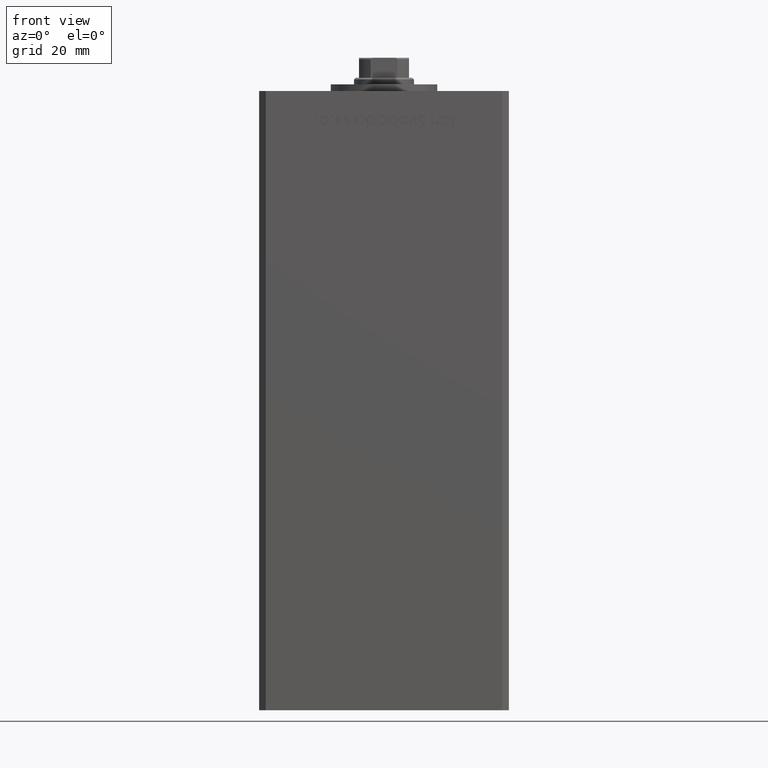
[diagram: clean part render]
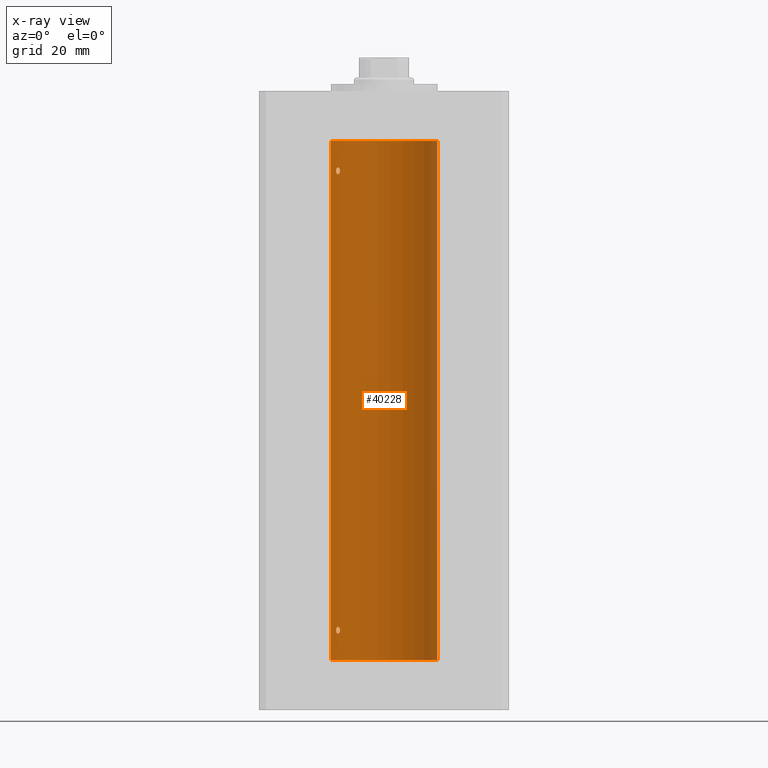
[diagram: x-ray — body ghosted, one internal face saturated and labeled with its STEP entity id]
A machine part, front view, then the same camera in x-ray: the body is ghosted and one INTERNAL B-rep face — a face not visible from any outside direction — is saturated and labeled: STEP entity #40228.
In plain terms, the highlighted cylindrical surface (partial cylindrical patch) has radius 16 mm, axis along (-0, -0, -1).
Its self-contained STEP definition (entity closure, byte-faithful):
#206 = EDGE_CURVE ( 'NONE', #8723, #643, #15499, .T. ) ;
#643 = VERTEX_POINT ( 'NONE', #1716 ) ;
#1091 = CARTESIAN_POINT ( 'NONE',  ( -13.37741691572085934, 8.778212469423014142, 9.640882860227099727 ) ) ;
#1347 = CARTESIAN_POINT ( 'NONE',  ( -14.11618354197461400, 7.533333301880478672, 9.893207651933416003 ) ) ;
#1570 = CARTESIAN_POINT ( 'NONE',  ( -13.22875655532296157, 8.999999999999994671, 147.1406447609177803 ) ) ;
#1630 = CARTESIAN_POINT ( 'NONE',  ( -14.31660136508399184, 7.144151923086058176, 8.464621795444474017 ) ) ;
#1647 = DIRECTION ( 'NONE',  ( -0.000000000000000000, -0.000000000000000000, -1.000000000000000000 ) ) ;
#1716 = CARTESIAN_POINT ( 'NONE',  ( -14.38749456993815912, 6.999999999999998224, 147.0000000000000284 ) ) ;
#2395 = LINE ( 'NONE', #48781, #31806 ) ;
#2407 = CARTESIAN_POINT ( 'NONE',  ( -13.22875655532295447, 8.999999999999996447, 9.000000000000000000 ) ) ;
#2588 = VECTOR ( 'NONE', #39726, 1000.000000000000000 ) ;
#2666 = CARTESIAN_POINT ( 'NONE',  ( -14.37250282441143767, 7.031013007322936659, 8.716856996037261496 ) ) ;
#2683 = CARTESIAN_POINT ( 'NONE',  ( -13.22875655532295625, 8.999999999999994671, 146.9295656223616504 ) ) ;
#3117 = CARTESIAN_POINT ( 'NONE',  ( -14.17576283486774891, 7.420212263225987925, 147.8252530343044100 ) ) ;
#3191 = CARTESIAN_POINT ( 'NONE',  ( -14.11621438951177687, 7.533308783217008475, 146.1065710718395110 ) ) ;
#3635 = EDGE_LOOP ( 'NONE', ( #18388, #15991, #28966, #8865 ) ) ;
#5037 = CARTESIAN_POINT ( 'NONE',  ( -13.22875655532295447, 8.999999999999996447, 9.000000000000000000 ) ) ;
#5152 = CARTESIAN_POINT ( 'NONE',  ( 0.000000000000000000, 0.000000000000000000, 156.0000000000000000 ) ) ;
#5726 = CIRCLE ( 'NONE', #47016, 16.00000000000000000 ) ;
#5774 = CARTESIAN_POINT ( 'NONE',  ( -13.70792461986390798, 8.256614593260307444, 147.9966215356423334 ) ) ;
#5933 = DIRECTION ( 'NONE',  ( 1.000000000000000000, 0.000000000000000000, 0.000000000000000000 ) ) ;
#6554 = CARTESIAN_POINT ( 'NONE',  ( -14.38749456993815912, 6.999999999999998224, 147.0000000000000284 ) ) ;
#6991 = ORIENTED_EDGE ( 'NONE', *, *, #16345, .F. ) ;
#7407 = CARTESIAN_POINT ( 'NONE',  ( -13.56386909142669772, 8.487613976483636691, 146.1182242979961359 ) ) ;
#7669 = CARTESIAN_POINT ( 'NONE',  ( -13.49759407097375075, 8.592283911330223845, 146.1840991521277147 ) ) ;
#7821 = EDGE_CURVE ( 'NONE', #17960, #50544, #2395, .T. ) ;
#8235 = CARTESIAN_POINT ( 'NONE',  ( 0.000000000000000000, 0.000000000000000000, 156.0000000000000000 ) ) ;
#8723 = VERTEX_POINT ( 'NONE', #43018 ) ;
#8865 = ORIENTED_EDGE ( 'NONE', *, *, #46086, .F. ) ;
#9524 = CARTESIAN_POINT ( 'NONE',  ( -13.32426099938365027, 8.858246960865852060, 8.468874877532968526 ) ) ;
#9533 = VERTEX_POINT ( 'NONE', #10859 ) ;
#9728 = CARTESIAN_POINT ( 'NONE',  ( -13.32457971225032622, 8.857769707964648020, 147.5319996627465855 ) ) ;
#9783 = CARTESIAN_POINT ( 'NONE',  ( -13.77582987033441064, 8.139210687602712824, 8.002110545841816247 ) ) ;
#9891 = ORIENTED_EDGE ( 'NONE', *, *, #38820, .F. ) ;
#10839 = CARTESIAN_POINT ( 'NONE',  ( -13.23400746336172240, 8.992294519018086518, 146.8578145590230406 ) ) ;
#10859 = CARTESIAN_POINT ( 'NONE',  ( -14.38749456993815912, 6.999999999999997335, 9.000000000000000000 ) ) ;
#11104 = CARTESIAN_POINT ( 'NONE',  ( -14.31660136508398828, 7.144151923086063505, 146.4646217954444865 ) ) ;
#11888 = CARTESIAN_POINT ( 'NONE',  ( -14.17528142432533755, 7.421143801852455368, 146.1739430735387089 ) ) ;
#12454 = FACE_BOUND ( 'NONE', #32898, .T. ) ;
#13172 = B_SPLINE_CURVE_WITH_KNOTS ( 'NONE', 3,
 ( #34840, #46724, #2666, #1630, #29585, #22420, #13494, #18476, #21910, #9783, #34587, #30625, #38034, #49897, #9524, #26137, #22165, #14270, #18735, #2407 ),
 .UNSPECIFIED., .F., .F.,
 ( 4, 2, 2, 2, 2, 2, 2, 2, 2, 4 ),
 ( 0.000000000000000000, 0.0004222090241339719976, 0.0008444180482679439952, 0.001266627072401915830, 0.001688836096535887990, 0.002111045120669860151, 0.002533254144803831660, 0.002955463168937803604, 0.003166567681004790660, 0.003377672193071777282 ),
 .UNSPECIFIED. ) ;
#13477 = CARTESIAN_POINT ( 'NONE',  ( -14.27521483392929014, 7.227035590538633869, 9.647859870688195727 ) ) ;
#13494 = CARTESIAN_POINT ( 'NONE',  ( -14.11621438951177332, 7.533308783217010252, 8.106571071839512754 ) ) ;
#14270 = CARTESIAN_POINT ( 'NONE',  ( -13.23400746336172951, 8.992294519018086518, 8.857814559023015732 ) ) ;
#14797 = CARTESIAN_POINT ( 'NONE',  ( -13.70481462797717676, 8.258098555717509726, 146.0259974772911562 ) ) ;
#15499 = B_SPLINE_CURVE_WITH_KNOTS ( 'NONE', 3,
 ( #37710, #1570, #17646, #9728, #25810, #41916, #5774, #37975, #47702, #30567, #3117, #43740, #39273, #35305, #46666, #6554 ),
 .UNSPECIFIED., .F., .F.,
 ( 4, 2, 2, 2, 2, 2, 2, 4 ),
 ( 0.003377672193071779884, 0.003799209865779855366, 0.004220747538487930849, 0.005063822883904134722, 0.005485360556612237093, 0.005906898229320339463, 0.006328435902028442701, 0.006749973574736545072 ),
 .UNSPECIFIED. ) ;
#15991 = ORIENTED_EDGE ( 'NONE', *, *, #26291, .T. ) ;
#16175 = CARTESIAN_POINT ( 'NONE',  ( 16.00000000000000000, 1.959434878635765131E-15, 0.000000000000000000 ) ) ;
#16345 = EDGE_CURVE ( 'NONE', #9533, #29178, #13172, .T. ) ;
#16412 = CYLINDRICAL_SURFACE ( 'NONE', #36692, 16.00000000000000000 ) ;
#16662 = EDGE_LOOP ( 'NONE', ( #41963, #48158 ) ) ;
#17159 = CARTESIAN_POINT ( 'NONE',  ( -13.55800260393082546, 8.498809056167521803, 9.903643446210175227 ) ) ;
#17646 = CARTESIAN_POINT ( 'NONE',  ( -13.24976519864029179, 8.969293778684573226, 147.2815352263351940 ) ) ;
#17811 = CARTESIAN_POINT ( 'NONE',  ( -13.22875655532295447, 8.999999999999996447, 9.000000000000000000 ) ) ;
#17960 = VERTEX_POINT ( 'NONE', #31362 ) ;
#18388 = ORIENTED_EDGE ( 'NONE', *, *, #7821, .F. ) ;
#18476 = CARTESIAN_POINT ( 'NONE',  ( -13.98699950016872151, 7.770591669637119558, 8.018476816648481886 ) ) ;
#18718 = CIRCLE ( 'NONE', #22096, 16.00000000000000000 ) ;
#18735 = CARTESIAN_POINT ( 'NONE',  ( -13.22875655532295092, 8.999999999999994671, 8.929565622361636201 ) ) ;
#18750 = CARTESIAN_POINT ( 'NONE',  ( -13.26838749541400908, 8.941532915076043864, 146.6562177939213711 ) ) ;
#19268 = CARTESIAN_POINT ( 'NONE',  ( -13.32426099938365383, 8.858246960865844954, 146.4688748775330112 ) ) ;
#20532 = DIRECTION ( 'NONE',  ( 1.000000000000000000, 0.000000000000000000, 0.000000000000000000 ) ) ;
#20937 = EDGE_CURVE ( 'NONE', #31961, #31369, #48411, .T. ) ;
#21110 = CARTESIAN_POINT ( 'NONE',  ( -13.22875655532295447, 8.999999999999996447, 9.140644760917734146 ) ) ;
#21627 = CARTESIAN_POINT ( 'NONE',  ( -14.31650799088418324, 7.144337649771912879, 9.535522627373689275 ) ) ;
#21910 = CARTESIAN_POINT ( 'NONE',  ( -13.91838063522420832, 7.892966471903941184, 7.998148313308679036 ) ) ;
#22096 = AXIS2_PLACEMENT_3D ( 'NONE', #5152, #25972, #5933 ) ;
#22165 = CARTESIAN_POINT ( 'NONE',  ( -13.25390108270225298, 8.962947079338388079, 8.721435762358455079 ) ) ;
#22420 = CARTESIAN_POINT ( 'NONE',  ( -14.17528142432533755, 7.421143801852455368, 8.173943073538659121 ) ) ;
#23222 = CARTESIAN_POINT ( 'NONE',  ( -13.91838063522421010, 7.892966471903945624, 145.9981483133087465 ) ) ;
#23509 = CARTESIAN_POINT ( 'NONE',  ( -16.00000000000000000, 0.000000000000000000, 0.000000000000000000 ) ) ;
#24319 = DIRECTION ( 'NONE',  ( -0.000000000000000000, -0.000000000000000000, -1.000000000000000000 ) ) ;
#25338 = CARTESIAN_POINT ( 'NONE',  ( -13.91892506969882959, 7.891973478508852224, 10.00155212263243953 ) ) ;
#25594 = CARTESIAN_POINT ( 'NONE',  ( -14.38749456993816445, 6.999999999999997335, 9.142625441524202756 ) ) ;
#25810 = CARTESIAN_POINT ( 'NONE',  ( -13.37741691572086111, 8.778212469423007036, 147.6408828602271512 ) ) ;
#25972 = DIRECTION ( 'NONE',  ( -0.000000000000000000, 0.000000000000000000, 1.000000000000000000 ) ) ;
#26137 = CARTESIAN_POINT ( 'NONE',  ( -13.26838749541400198, 8.941532915076040311, 8.656217793921369363 ) ) ;
#26278 = B_SPLINE_CURVE_WITH_KNOTS ( 'NONE', 3,
 ( #5037, #21110, #33787, #37233, #1091, #17159, #45403, #25338, #37490, #1347, #49617, #13477, #21627, #29566, #25594, #41700 ),
 .UNSPECIFIED., .F., .F.,
 ( 4, 2, 2, 2, 2, 2, 2, 4 ),
 ( 0.003377672193071777282, 0.003799209865779874882, 0.004220747538487972482, 0.005063822883904168549, 0.005485360556612268318, 0.005906898229320367219, 0.006328435902028466120, 0.006749973574736565889 ),
 .UNSPECIFIED. ) ;
#26291 = EDGE_CURVE ( 'NONE', #17960, #31961, #18718, .T. ) ;
#26932 = CARTESIAN_POINT ( 'NONE',  ( -13.22875655532295802, 8.999999999999996447, 147.0000000000000284 ) ) ;
#27717 = CARTESIAN_POINT ( 'NONE',  ( -14.37250282441143945, 7.031013007322939323, 146.7168569960373077 ) ) ;
#28543 = DIRECTION ( 'NONE',  ( -1.000000000000000000, 0.000000000000000000, 0.000000000000000000 ) ) ;
#28602 = CARTESIAN_POINT ( 'NONE',  ( -16.00000000000000000, 0.000000000000000000, 156.0000000000000000 ) ) ;
#28966 = ORIENTED_EDGE ( 'NONE', *, *, #20937, .T. ) ;
#29178 = VERTEX_POINT ( 'NONE', #17811 ) ;
#29566 = CARTESIAN_POINT ( 'NONE',  ( -14.37227256866306213, 7.031482256185707769, 9.284457240976479397 ) ) ;
#29585 = CARTESIAN_POINT ( 'NONE',  ( -14.27547848986622014, 7.226527013162185931, 8.352555730181528304 ) ) ;
#30567 = CARTESIAN_POINT ( 'NONE',  ( -14.11618354197461400, 7.533333301880474231, 147.8932076519334373 ) ) ;
#30625 = CARTESIAN_POINT ( 'NONE',  ( -13.56386909142669950, 8.487613976483636691, 8.118224297996075478 ) ) ;
#31362 = CARTESIAN_POINT ( 'NONE',  ( 16.00000000000000000, 1.959434878635765131E-15, 156.0000000000000000 ) ) ;
#31369 = VERTEX_POINT ( 'NONE', #23509 ) ;
#31806 = VECTOR ( 'NONE', #1647, 1000.000000000000000 ) ;
#31961 = VERTEX_POINT ( 'NONE', #46312 ) ;
#32164 = CARTESIAN_POINT ( 'NONE',  ( 0.000000000000000000, 0.000000000000000000, 0.000000000000000000 ) ) ;
#32898 = EDGE_LOOP ( 'NONE', ( #6991, #9891 ) ) ;
#33787 = CARTESIAN_POINT ( 'NONE',  ( -13.24976519864029179, 8.969293778684576779, 9.281535226335156707 ) ) ;
#34587 = CARTESIAN_POINT ( 'NONE',  ( -13.70481462797718031, 8.258098555717506173, 8.025997477291133109 ) ) ;
#34840 = CARTESIAN_POINT ( 'NONE',  ( -14.38749456993815912, 6.999999999999997335, 9.000000000000000000 ) ) ;
#34856 = CARTESIAN_POINT ( 'NONE',  ( -13.25390108270225120, 8.962947079338391632, 146.7214357623584533 ) ) ;
#35305 = CARTESIAN_POINT ( 'NONE',  ( -14.37227256866306213, 7.031482256185711321, 147.2844572409765078 ) ) ;
#35639 = CARTESIAN_POINT ( 'NONE',  ( -14.38749456993816267, 6.999999999999999112, 146.8571474096354450 ) ) ;
#35894 = CARTESIAN_POINT ( 'NONE',  ( -13.98699950016872151, 7.770591669637114229, 146.0184768166484446 ) ) ;
#36692 = AXIS2_PLACEMENT_3D ( 'NONE', #8235, #24319, #28543 ) ;
#36734 = FACE_BOUND ( 'NONE', #16662, .T. ) ;
#37233 = CARTESIAN_POINT ( 'NONE',  ( -13.32457971225032445, 8.857769707964649797, 9.531999662746555302 ) ) ;
#37490 = CARTESIAN_POINT ( 'NONE',  ( -13.98878315975729159, 7.767347947480346626, 9.980546143261280534 ) ) ;
#37710 = CARTESIAN_POINT ( 'NONE',  ( -13.22875655532295802, 8.999999999999996447, 147.0000000000000284 ) ) ;
#37975 = CARTESIAN_POINT ( 'NONE',  ( -13.91892506969882071, 7.891973478508848672, 148.0015521226324040 ) ) ;
#38034 = CARTESIAN_POINT ( 'NONE',  ( -13.49759407097374897, 8.592283911330223845, 8.184099152127670251 ) ) ;
#38820 = EDGE_CURVE ( 'NONE', #29178, #9533, #26278, .T. ) ;
#39273 = CARTESIAN_POINT ( 'NONE',  ( -14.31650799088418147, 7.144337649771908438, 147.5355226273736946 ) ) ;
#39347 = CARTESIAN_POINT ( 'NONE',  ( -13.37674940693422876, 8.779234808442867077, 146.3602441571267718 ) ) ;
#39726 = DIRECTION ( 'NONE',  ( -0.000000000000000000, -0.000000000000000000, -1.000000000000000000 ) ) ;
#40228 = ADVANCED_FACE ( 'NONE', ( #48600, #12454, #36734 ), #16412, .F. ) ;
#41311 = B_SPLINE_CURVE_WITH_KNOTS ( 'NONE', 3,
 ( #47771, #35639, #27717, #11104, #44071, #11888, #3191, #35894, #23222, #43814, #14797, #7407, #7669, #39347, #19268, #18750, #34856, #10839, #2683, #26932 ),
 .UNSPECIFIED., .F., .F.,
 ( 4, 2, 2, 2, 2, 2, 2, 2, 2, 4 ),
 ( 0.000000000000000000, 0.0004222090241339633240, 0.0008444180482679266480, 0.001266627072401889809, 0.001688836096535853296, 0.002111045120669816783, 0.002533254144803779619, 0.002955463168937742888, 0.003166567681004761603, 0.003377672193071779884 ),
 .UNSPECIFIED. ) ;
#41700 = CARTESIAN_POINT ( 'NONE',  ( -14.38749456993815912, 6.999999999999997335, 9.000000000000000000 ) ) ;
#41916 = CARTESIAN_POINT ( 'NONE',  ( -13.55800260393081835, 8.498809056167509368, 147.9036434462101397 ) ) ;
#41963 = ORIENTED_EDGE ( 'NONE', *, *, #49926, .F. ) ;
#43018 = CARTESIAN_POINT ( 'NONE',  ( -13.22875655532295802, 8.999999999999996447, 147.0000000000000284 ) ) ;
#43740 = CARTESIAN_POINT ( 'NONE',  ( -14.27521483392928836, 7.227035590538638310, 147.6478598706881940 ) ) ;
#43814 = CARTESIAN_POINT ( 'NONE',  ( -13.77582987033440709, 8.139210687602719929, 146.0021105458418447 ) ) ;
#44042 = DIRECTION ( 'NONE',  ( -0.000000000000000000, 0.000000000000000000, 1.000000000000000000 ) ) ;
#44071 = CARTESIAN_POINT ( 'NONE',  ( -14.27547848986622370, 7.226527013162184154, 146.3525557301815354 ) ) ;
#45403 = CARTESIAN_POINT ( 'NONE',  ( -13.70792461986390620, 8.256614593260307444, 9.996621535642271184 ) ) ;
#46086 = EDGE_CURVE ( 'NONE', #50544, #31369, #5726, .T. ) ;
#46312 = CARTESIAN_POINT ( 'NONE',  ( -16.00000000000000000, 0.000000000000000000, 156.0000000000000000 ) ) ;
#46666 = CARTESIAN_POINT ( 'NONE',  ( -14.38749456993815734, 6.999999999999997335, 147.1426254415242738 ) ) ;
#46724 = CARTESIAN_POINT ( 'NONE',  ( -14.38749456993815556, 6.999999999999997335, 8.857147409635411250 ) ) ;
#47016 = AXIS2_PLACEMENT_3D ( 'NONE', #32164, #44042, #20532 ) ;
#47702 = CARTESIAN_POINT ( 'NONE',  ( -13.98878315975728803, 7.767347947480344850, 147.9805461432612788 ) ) ;
#47771 = CARTESIAN_POINT ( 'NONE',  ( -14.38749456993815912, 6.999999999999998224, 147.0000000000000284 ) ) ;
#48158 = ORIENTED_EDGE ( 'NONE', *, *, #206, .F. ) ;
#48411 = LINE ( 'NONE', #28602, #2588 ) ;
#48600 = FACE_OUTER_BOUND ( 'NONE', #3635, .T. ) ;
#48781 = CARTESIAN_POINT ( 'NONE',  ( 16.00000000000000000, 1.959434878635765131E-15, 156.0000000000000000 ) ) ;
#49617 = CARTESIAN_POINT ( 'NONE',  ( -14.17576283486774535, 7.420212263225985261, 9.825253034304354927 ) ) ;
#49897 = CARTESIAN_POINT ( 'NONE',  ( -13.37674940693422521, 8.779234808442870630, 8.360244157126784259 ) ) ;
#49926 = EDGE_CURVE ( 'NONE', #643, #8723, #41311, .T. ) ;
#50544 = VERTEX_POINT ( 'NONE', #16175 ) ;